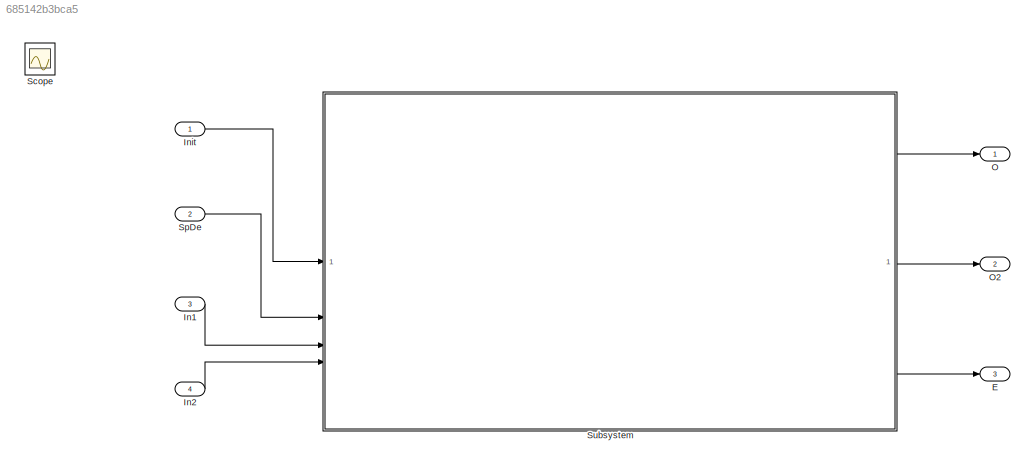
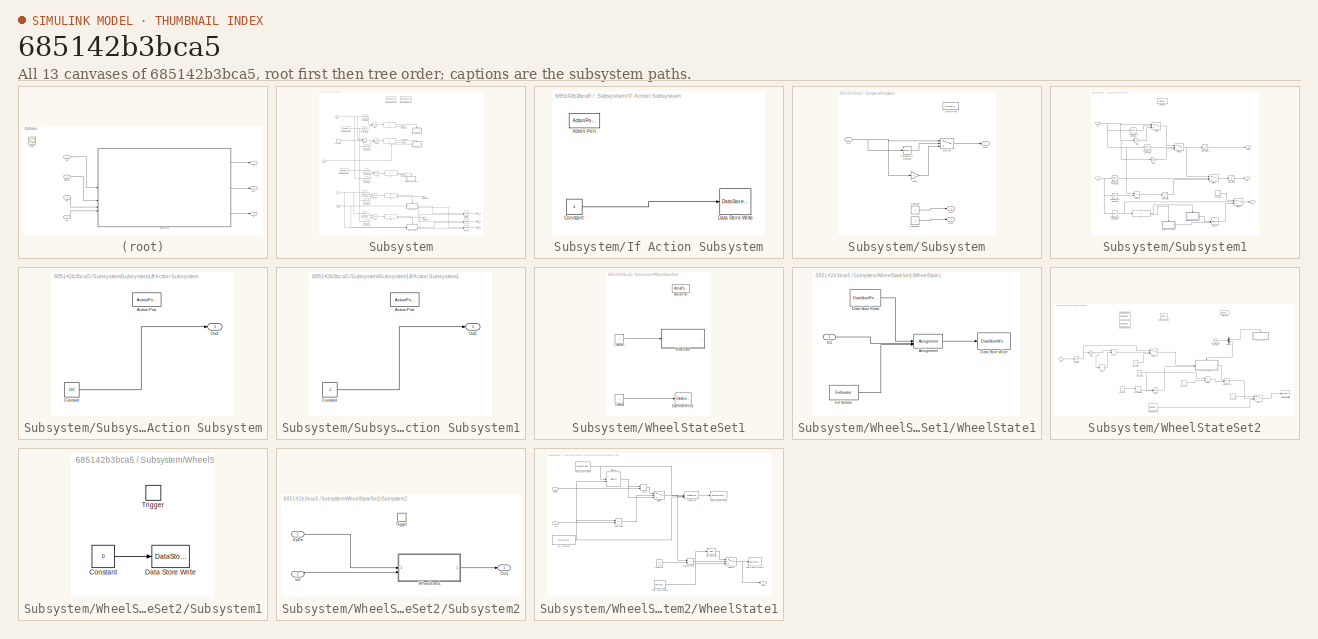
[diagram: thumbnail index - all 13 canvases of the model, root first then tree order]
MODEL slx_685142b3bca5
KIND model
CONFIG AbsTol = auto
CONFIG EnableMultiTasking = off
CONFIG FixedStep = 1
CONFIG MaxStep = auto
CONFIG MinStep = auto
CONFIG RelTol = 1e-3
CONFIG SampleTimeConstraint = Unconstrained
CONFIG SolverName = FixedStepAuto
CONFIG StartTime = 0.0
CONFIG StopTime = 50000000
BLOCK [Outport] E
  Port = 3
BLOCK [Inport] In1
  OutDataTypeStr = int32
  Port = 3
BLOCK [Inport] In2
  OutDataTypeStr = single
  Port = 4
BLOCK [Inport] Init
  OutDataTypeStr = int32
BLOCK [Outport] O
BLOCK [Outport] O2
  Port = 2
BLOCK [Scope] Scope
  Floating = off
  IOType = viewer
  NumInputPorts = 1
  ScopeSpecificationString = Simulink.scopes.TimeScopeBlockCfg('CurrentConfiguration', extmgr.ConfigurationSet(extmgr.Configuration('Core','General UI',true),extmgr.Configuration('Core','Source UI',true),extmgr.Configuration('Sources','WiredSimulink',true),extmgr.Configuration('Visuals','Time Domain',true),extmgr.Configuration('Tools','Plot Navigation',true),extmgr.Configuration('Tools','Measurements',true,'Version','2022b'))...<+49ch>
BLOCK [Inport] SpDe
  OutDataTypeStr = single
  Port = 2
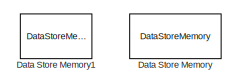
[diagram: Subsystem - part 1/3, top center region]
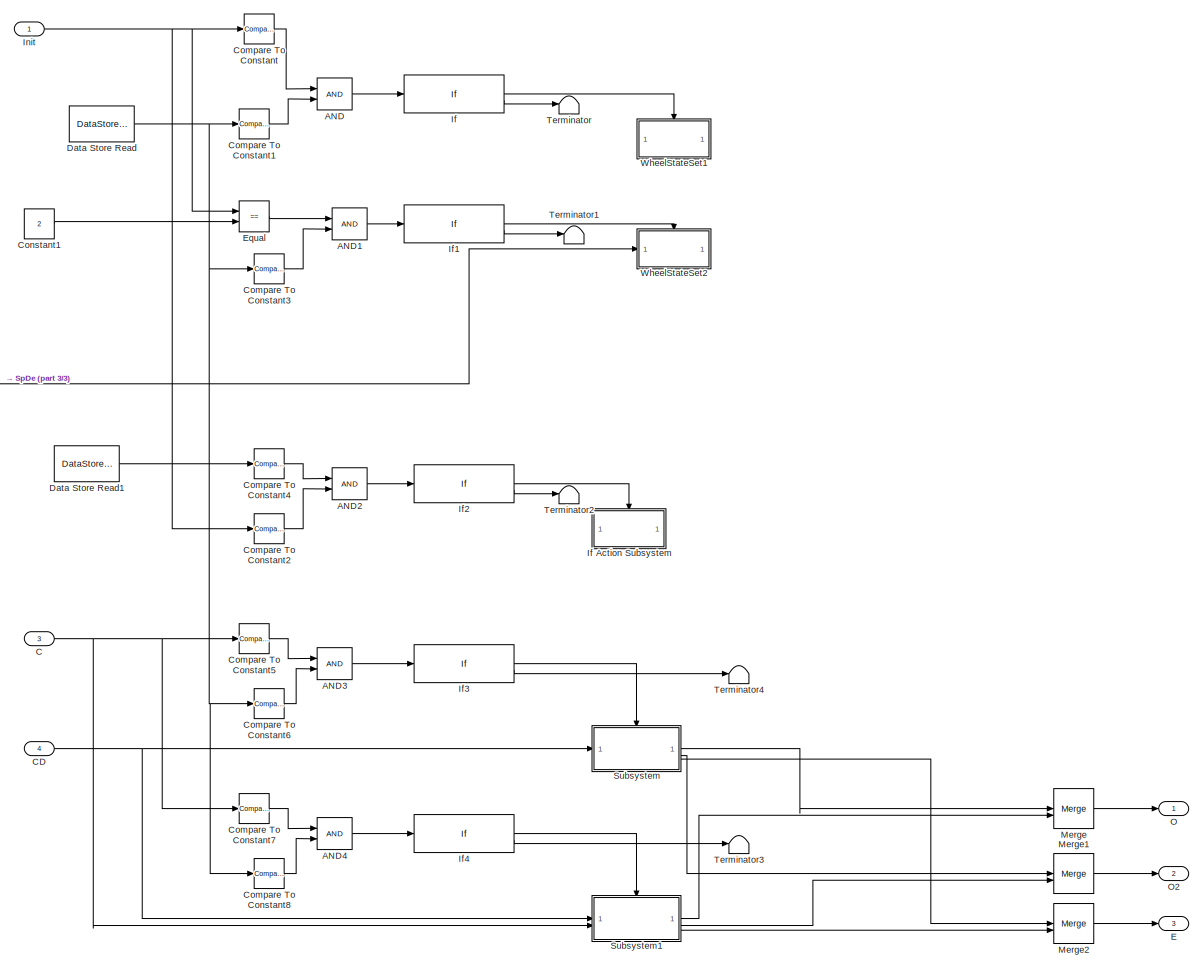
[diagram: Subsystem - part 2/3, most of the canvas]
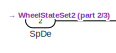
[diagram: Subsystem - part 3/3, middle left region]
BLOCK [SubSystem] Subsystem
BLOCK [Logic] Subsystem/AND
  AllPortsSameDT = off
  IconShape = distinctive
  OutDataTypeStr = boolean
BLOCK [Logic] Subsystem/AND1
  AllPortsSameDT = off
  IconShape = distinctive
  OutDataTypeStr = boolean
BLOCK [Logic] Subsystem/AND2
  AllPortsSameDT = off
  IconShape = distinctive
  OutDataTypeStr = boolean
BLOCK [Logic] Subsystem/AND3
  AllPortsSameDT = off
  IconShape = distinctive
  OutDataTypeStr = boolean
BLOCK [Logic] Subsystem/AND4
  AllPortsSameDT = off
  IconShape = distinctive
  OutDataTypeStr = boolean
BLOCK [Inport] Subsystem/C
  OutDataTypeStr = int32
  Port = 3
BLOCK [Inport] Subsystem/CD
  OutDataTypeStr = single
  Port = 4
BLOCK [Reference] Subsystem/Compare To Constant  REF=simulink/Logic and Bit
Operations/Compare
To Constant
  SourceBlock = simulink/Logic and Bit\nOperations/Compare\nTo Constant
  SourceType = Compare To Constant
BLOCK [Reference] Subsystem/Compare To Constant1  REF=simulink/Logic and Bit
Operations/Compare
To Constant
  SourceBlock = simulink/Logic and Bit\nOperations/Compare\nTo Constant
  SourceType = Compare To Constant
BLOCK [Reference] Subsystem/Compare To Constant2  REF=simulink/Logic and Bit
Operations/Compare
To Constant
  SourceBlock = simulink/Logic and Bit\nOperations/Compare\nTo Constant
  SourceType = Compare To Constant
BLOCK [Reference] Subsystem/Compare To Constant3  REF=simulink/Logic and Bit
Operations/Compare
To Constant
  SourceBlock = simulink/Logic and Bit\nOperations/Compare\nTo Constant
  SourceType = Compare To Constant
BLOCK [Reference] Subsystem/Compare To Constant4  REF=simulink/Logic and Bit
Operations/Compare
To Constant
  SourceBlock = simulink/Logic and Bit\nOperations/Compare\nTo Constant
  SourceType = Compare To Constant
BLOCK [Reference] Subsystem/Compare To Constant5  REF=simulink/Logic and Bit
Operations/Compare
To Constant
  SourceBlock = simulink/Logic and Bit\nOperations/Compare\nTo Constant
  SourceType = Compare To Constant
BLOCK [Reference] Subsystem/Compare To Constant6  REF=simulink/Logic and Bit
Operations/Compare
To Constant
  SourceBlock = simulink/Logic and Bit\nOperations/Compare\nTo Constant
  SourceType = Compare To Constant
BLOCK [Reference] Subsystem/Compare To Constant7  REF=simulink/Logic and Bit
Operations/Compare
To Constant
  SourceBlock = simulink/Logic and Bit\nOperations/Compare\nTo Constant
  SourceType = Compare To Constant
BLOCK [Reference] Subsystem/Compare To Constant8  REF=simulink/Logic and Bit
Operations/Compare
To Constant
  SourceBlock = simulink/Logic and Bit\nOperations/Compare\nTo Constant
  SourceType = Compare To Constant
BLOCK [Constant] Subsystem/Constant1
  OutDataTypeStr = int32
  Value = 2
BLOCK [DataStoreMemory] Subsystem/Data Store Memory
  DataStoreName = WheelState
  Dimensions = Len
  OutDataTypeStr = single
  ShowAdditionalParam = off
  WriteAfterWriteMsg = warning
BLOCK [DataStoreMemory] Subsystem/Data Store Memory1
  DataStoreName = PState
  OutDataTypeStr = int32
  ShowAdditionalParam = off
  WriteAfterWriteMsg = warning
BLOCK [DataStoreRead] Subsystem/Data Store Read
  DataStoreName = PState
  IndexOptions = Index vector (dialog)
  Indices = 1
  OutputSizes = 1
BLOCK [DataStoreRead] Subsystem/Data Store Read1
  DataStoreName = PState
  IndexOptions = Index vector (dialog)
  Indices = 1
  OutputSizes = 1
BLOCK [Outport] Subsystem/E
  Port = 3
BLOCK [RelationalOperator] Subsystem/Equal
  InputSameDT = off
  Operator = ==
  OutDataTypeStr = boolean
  RndMeth = Simplest
BLOCK [If] Subsystem/If
  IfExpression = u1 ~= 0
BLOCK [SubSystem] Subsystem/If Action Subsystem
  TreatAsAtomicUnit = on
BLOCK [ActionPort] Subsystem/If Action Subsystem/Action Port
  ActionPortLabel = if(u1 ~= 0)
BLOCK [Constant] Subsystem/If Action Subsystem/Constant
  OutDataTypeStr = int32
  Value = 4
BLOCK [DataStoreWrite] Subsystem/If Action Subsystem/Data Store Write
  DataStoreName = PState
  IndexOptions = Index vector (dialog)
  Indices = 1
  OutputSizes = 1
BLOCK [If] Subsystem/If1
  IfExpression = u1 ~= 0
BLOCK [If] Subsystem/If2
  IfExpression = u1 ~= 0
BLOCK [If] Subsystem/If3
  IfExpression = u1 ~= 0
BLOCK [If] Subsystem/If4
  IfExpression = u1 ~= 0
BLOCK [Inport] Subsystem/Init
BLOCK [Merge] Subsystem/Merge
BLOCK [Merge] Subsystem/Merge1
BLOCK [Merge] Subsystem/Merge2
BLOCK [Outport] Subsystem/O
BLOCK [Outport] Subsystem/O2
  Port = 2
BLOCK [Inport] Subsystem/SpDe
  OutDataTypeStr = single
  Port = 2
BLOCK [SubSystem] Subsystem/Subsystem
BLOCK [ActionPort] Subsystem/Subsystem/Action Port
  ActionPortLabel = if(u1 ~= 0)
BLOCK [Inport] Subsystem/Subsystem/CD
BLOCK [Reference] Subsystem/Subsystem/Compare To Constant  REF=simulink/Logic and Bit
Operations/Compare
To Constant
  SourceBlock = simulink/Logic and Bit\nOperations/Compare\nTo Constant
  SourceType = Compare To Constant
BLOCK [Constant] Subsystem/Subsystem/Constant
  OutDataTypeStr = single
  Value = -1
BLOCK [Constant] Subsystem/Subsystem/Constant1
  OutDataTypeStr = single
  Value = -1
BLOCK [Gain] Subsystem/Subsystem/Gain
  Gain = -2
  OutDataTypeStr = single
BLOCK [Outport] Subsystem/Subsystem/Out1
BLOCK [Outport] Subsystem/Subsystem/Out2
  Port = 2
BLOCK [Outport] Subsystem/Subsystem/Out3
  Port = 3
BLOCK [Switch] Subsystem/Subsystem/Switch
  Criteria = u2 > Threshold
  InputSameDT = off
  SaturateOnIntegerOverflow = off
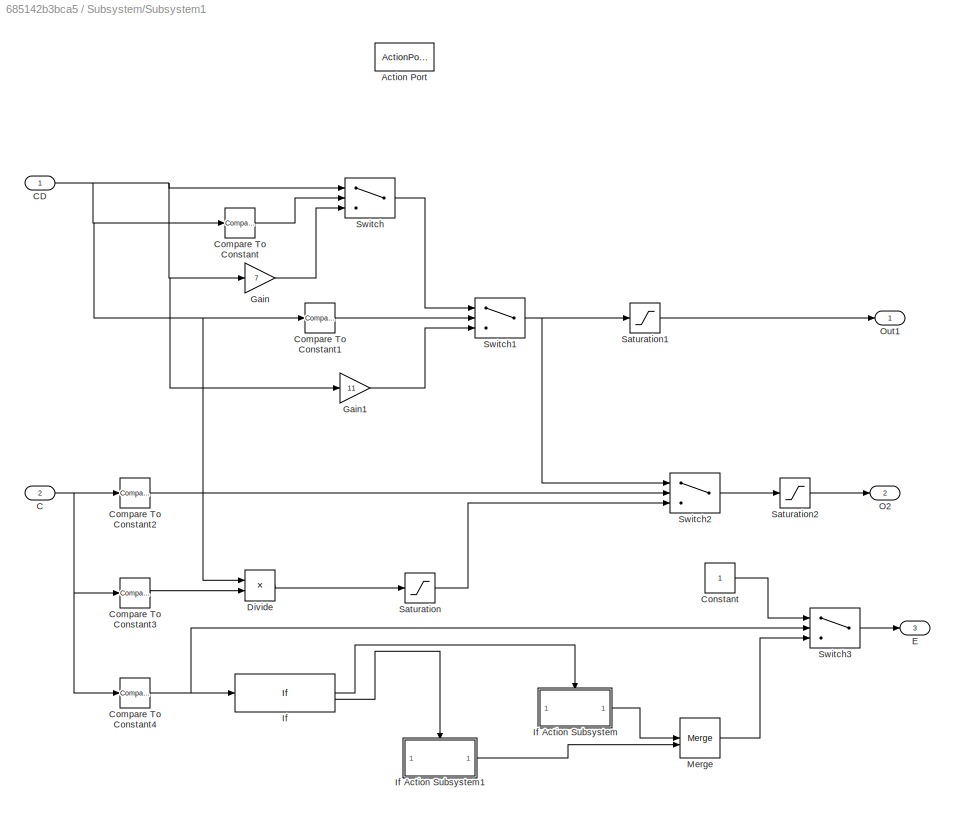
BLOCK [SubSystem] Subsystem/Subsystem1
BLOCK [ActionPort] Subsystem/Subsystem1/Action Port
  ActionPortLabel = if(u1 ~= 0)
BLOCK [Inport] Subsystem/Subsystem1/C
  Port = 2
BLOCK [Inport] Subsystem/Subsystem1/CD
BLOCK [Reference] Subsystem/Subsystem1/Compare To Constant  REF=simulink/Logic and Bit
Operations/Compare
To Constant
  SourceBlock = simulink/Logic and Bit\nOperations/Compare\nTo Constant
  SourceType = Compare To Constant
BLOCK [Reference] Subsystem/Subsystem1/Compare To Constant1  REF=simulink/Logic and Bit
Operations/Compare
To Constant
  SourceBlock = simulink/Logic and Bit\nOperations/Compare\nTo Constant
  SourceType = Compare To Constant
BLOCK [Reference] Subsystem/Subsystem1/Compare To Constant2  REF=simulink/Logic and Bit
Operations/Compare
To Constant
  SourceBlock = simulink/Logic and Bit\nOperations/Compare\nTo Constant
  SourceType = Compare To Constant
BLOCK [Reference] Subsystem/Subsystem1/Compare To Constant3  REF=simulink/Logic and Bit
Operations/Compare
To Constant
  SourceBlock = simulink/Logic and Bit\nOperations/Compare\nTo Constant
  SourceType = Compare To Constant
BLOCK [Reference] Subsystem/Subsystem1/Compare To Constant4  REF=simulink/Logic and Bit
Operations/Compare
To Constant
  SourceBlock = simulink/Logic and Bit\nOperations/Compare\nTo Constant
  SourceType = Compare To Constant
BLOCK [Constant] Subsystem/Subsystem1/Constant
  OutDataTypeStr = single
BLOCK [Product] Subsystem/Subsystem1/Divide
  Inputs = **
  OutDataTypeStr = single
BLOCK [Outport] Subsystem/Subsystem1/E
  Port = 3
BLOCK [Gain] Subsystem/Subsystem1/Gain
  Gain = 7
  OutDataTypeStr = single
BLOCK [Gain] Subsystem/Subsystem1/Gain1
  Gain = 11
  OutDataTypeStr = single
BLOCK [If] Subsystem/Subsystem1/If
  IfExpression = u1 ~= 0
BLOCK [SubSystem] Subsystem/Subsystem1/If Action Subsystem
  TreatAsAtomicUnit = on
BLOCK [ActionPort] Subsystem/Subsystem1/If Action Subsystem/Action Port
  ActionPortLabel = if(u1 ~= 0)
BLOCK [Constant] Subsystem/Subsystem1/If Action Subsystem/Constant
  OutDataTypeStr = single
  Value = 101
BLOCK [Outport] Subsystem/Subsystem1/If Action Subsystem/Out1
BLOCK [SubSystem] Subsystem/Subsystem1/If Action Subsystem1
  TreatAsAtomicUnit = on
BLOCK [ActionPort] Subsystem/Subsystem1/If Action Subsystem1/Action Port
  ActionPortLabel = else
BLOCK [Constant] Subsystem/Subsystem1/If Action Subsystem1/Constant
  OutDataTypeStr = single
  Value = -1
BLOCK [Outport] Subsystem/Subsystem1/If Action Subsystem1/Out1
BLOCK [Merge] Subsystem/Subsystem1/Merge
BLOCK [Outport] Subsystem/Subsystem1/O2
  Port = 2
BLOCK [Outport] Subsystem/Subsystem1/Out1
BLOCK [Saturate] Subsystem/Subsystem1/Saturation
  LowerLimit = 0
  UpperLimit = 97
BLOCK [Saturate] Subsystem/Subsystem1/Saturation1
  LowerLimit = 0
  UpperLimit = 97
BLOCK [Saturate] Subsystem/Subsystem1/Saturation2
  LowerLimit = 0
  UpperLimit = 100
BLOCK [Switch] Subsystem/Subsystem1/Switch
  Criteria = u2 > Threshold
  InputSameDT = off
  SaturateOnIntegerOverflow = off
BLOCK [Switch] Subsystem/Subsystem1/Switch1
  Criteria = u2 > Threshold
  InputSameDT = off
  SaturateOnIntegerOverflow = off
BLOCK [Switch] Subsystem/Subsystem1/Switch2
  Criteria = u2 > Threshold
  InputSameDT = off
  SaturateOnIntegerOverflow = off
BLOCK [Switch] Subsystem/Subsystem1/Switch3
  Criteria = u2 > Threshold
  InputSameDT = off
  SaturateOnIntegerOverflow = off
BLOCK [Terminator] Subsystem/Terminator
BLOCK [Terminator] Subsystem/Terminator1
BLOCK [Terminator] Subsystem/Terminator2
BLOCK [Terminator] Subsystem/Terminator3
BLOCK [Terminator] Subsystem/Terminator4
BLOCK [SubSystem] Subsystem/WheelStateSet1
  TreatAsAtomicUnit = on
BLOCK [ActionPort] Subsystem/WheelStateSet1/Action Port
  ActionPortLabel = if(u1 ~= 0)
BLOCK [Constant] Subsystem/WheelStateSet1/Constant
  OutDataTypeStr = int32
BLOCK [Constant] Subsystem/WheelStateSet1/Constant1
  OutDataTypeStr = single
BLOCK [DataStoreWrite] Subsystem/WheelStateSet1/Data Store Write1
  DataStoreName = PState
  IndexOptions = Index vector (dialog)
  Indices = 1
  OutputSizes = 1
BLOCK [SubSystem] Subsystem/WheelStateSet1/WheelState1
  TreatAsAtomicUnit = on
BLOCK [Assignment] Subsystem/WheelStateSet1/WheelState1/Assignment
  DiagnosticForDimensions = Warning
  IndexMode = Zero-based
  IndexOptions = Index vector (port)
  Indices = 1
  OutputSizes = 1
BLOCK [DataStoreRead] Subsystem/WheelStateSet1/WheelState1/Data Store Read
  DataStoreName = WheelState
  IndexOptions = Index vector (dialog)
  Indices = 1
  OutputSizes = 1
BLOCK [DataStoreWrite] Subsystem/WheelStateSet1/WheelState1/Data Store Write
  DataStoreName = WheelState
  IndexOptions = Index vector (dialog)
  Indices = 1
  OutputSizes = 1
BLOCK [ForIterator] Subsystem/WheelStateSet1/WheelState1/For Iterator
  IndexMode = Zero-based
  IterationLimit = Len
BLOCK [Inport] Subsystem/WheelStateSet1/WheelState1/In1
BLOCK [SubSystem] Subsystem/WheelStateSet2
  TreatAsAtomicUnit = on
BLOCK [DiscreteIntegrator] Subsystem/WheelStateSet2/Accumulator
  ICPrevOutput = DiscIntNeverNeededParam
  ICPrevScaledInput = DiscIntNeverNeededParam
  InitialConditionSetting = Auto
  IntegratorMethod = Accumulation: Forward Euler
  SampleTime = -1
BLOCK [ActionPort] Subsystem/WheelStateSet2/Action Port
  ActionPortLabel = if(u1 ~= 0)
BLOCK [Constant] Subsystem/WheelStateSet2/Constant
  OutDataTypeStr = int32
BLOCK [Constant] Subsystem/WheelStateSet2/Constant1
  OutDataTypeStr = single
  Value = 0
BLOCK [Constant] Subsystem/WheelStateSet2/Constant2
  OutDataTypeStr = int32
  Value = 2
BLOCK [Constant] Subsystem/WheelStateSet2/Constant3
  OutDataTypeStr = int32
  Value = Len
BLOCK [Constant] Subsystem/WheelStateSet2/Constant4
  OutDataTypeStr = int32
  Value = 2
BLOCK [DataStoreMemory] Subsystem/WheelStateSet2/Data Store Memory
  DataStoreName = CountSp
  OutDataTypeStr = int32
  ShowAdditionalParam = off
  WriteAfterWriteMsg = warning
BLOCK [DataStoreMemory] Subsystem/WheelStateSet2/Data Store Memory2
  DataStoreName = SpDeSt
  Dimensions = Len
  OutDataTypeStr = int32
  ShowAdditionalParam = off
  WriteAfterWriteMsg = warning
BLOCK [DataStoreMemory] Subsystem/WheelStateSet2/Data Store Memory5
  DataStoreName = Index
  OutDataTypeStr = int32
  ShowAdditionalParam = off
  WriteAfterWriteMsg = warning
BLOCK [DataStoreRead] Subsystem/WheelStateSet2/Data Store Read
  DataStoreName = PState
  IndexOptions = Index vector (dialog)
  Indices = 1
  OutputSizes = 1
BLOCK [DataStoreWrite] Subsystem/WheelStateSet2/Data Store Write1
  DataStoreName = PState
  IndexOptions = Index vector (dialog)
  Indices = 1
  OutputSizes = 1
BLOCK [Delay] Subsystem/WheelStateSet2/Delay
  DelayLength = 1
  InputPortMap = u0
BLOCK [Demux] Subsystem/WheelStateSet2/Demux
  Outputs = 2
BLOCK [Product] Subsystem/WheelStateSet2/Divide
  Inputs = */
BLOCK [RelationalOperator] Subsystem/WheelStateSet2/Equal
  InputSameDT = off
  Operator = ~=
  OutDataTypeStr = boolean
  RndMeth = Simplest
BLOCK [Reference] Subsystem/WheelStateSet2/Function-Call Generator  REF=simulink/Ports &
Subsystems/Function-Call
Generator
  SourceBlock = simulink/Ports &\nSubsystems/Function-Call\nGenerator
  SourceType = Function-Call Generator
BLOCK [Gain] Subsystem/WheelStateSet2/Gain
  Gain = 100
  OutDataTypeStr = int32
BLOCK [RelationalOperator] Subsystem/WheelStateSet2/GreaterThan
  InputSameDT = off
  OutDataTypeStr = boolean
  RndMeth = Simplest
BLOCK [Math] Subsystem/WheelStateSet2/Mod
  Operator = mod
BLOCK [Saturate] Subsystem/WheelStateSet2/Saturation
  LowerLimit = 0.1
BLOCK [Inport] Subsystem/WheelStateSet2/SpDe
BLOCK [SubSystem] Subsystem/WheelStateSet2/Subsystem1
BLOCK [Constant] Subsystem/WheelStateSet2/Subsystem1/Constant
  OutDataTypeStr = int32
  Value = 0
BLOCK [DataStoreWrite] Subsystem/WheelStateSet2/Subsystem1/Data Store Write
  DataStoreName = CountSp
  IndexOptions = Index vector (dialog)
  Indices = 1
  OutputSizes = 1
BLOCK [TriggerPort] Subsystem/WheelStateSet2/Subsystem1/Trigger
  PortDimensions = 1
  StatesWhenEnabling = held
  TriggerType = function-call
  VariantControl = (inherit)
BLOCK [SubSystem] Subsystem/WheelStateSet2/Subsystem2
BLOCK [Inport] Subsystem/WheelStateSet2/Subsystem2/In2
  Port = 2
BLOCK [Outport] Subsystem/WheelStateSet2/Subsystem2/Out1
BLOCK [Inport] Subsystem/WheelStateSet2/Subsystem2/SpDe
BLOCK [TriggerPort] Subsystem/WheelStateSet2/Subsystem2/Trigger
  PortDimensions = 1
  StatesWhenEnabling = held
  TriggerType = function-call
  VariantControl = (inherit)
BLOCK [SubSystem] Subsystem/WheelStateSet2/Subsystem2/WheelState1
  TreatAsAtomicUnit = on
BLOCK [Sum] Subsystem/WheelStateSet2/Subsystem2/WheelState1/Add
  IconShape = rectangular
BLOCK [Bias] Subsystem/WheelStateSet2/Subsystem2/WheelState1/Add Constant
  Bias = 1
  SaturateOnIntegerOverflow = off
BLOCK [Assignment] Subsystem/WheelStateSet2/Subsystem2/WheelState1/Assignment
  DiagnosticForDimensions = Warning
  IndexMode = Zero-based
  IndexOptions = Index vector (port)
  Indices = 1
  OutputSizes = 1
BLOCK [Constant] Subsystem/WheelStateSet2/Subsystem2/WheelState1/Constant
  OutDataTypeStr = single
  Value = 1.2
BLOCK [DataStoreRead] Subsystem/WheelStateSet2/Subsystem2/WheelState1/Data Store Read
  DataStoreName = WheelState
  IndexOptions = Index vector (dialog)
  Indices = 1
  OutputSizes = 1
BLOCK [DataStoreRead] Subsystem/WheelStateSet2/Subsystem2/WheelState1/Data Store Read1
  DataStoreName = CountSp
  IndexOptions = Index vector (dialog)
  Indices = 1
  OutputSizes = 1
BLOCK [DataStoreWrite] Subsystem/WheelStateSet2/Subsystem2/WheelState1/Data Store Write
  DataStoreName = WheelState
  IndexOptions = Index vector (dialog)
  Indices = 1
  OutputSizes = 1
BLOCK [DataStoreWrite] Subsystem/WheelStateSet2/Subsystem2/WheelState1/Data Store Write1
  DataStoreName = CountSp
  IndexOptions = Index vector (dialog)
  Indices = 1
  OutputSizes = 1
BLOCK [ForIterator] Subsystem/WheelStateSet2/Subsystem2/WheelState1/For Iterator
  IndexMode = Zero-based
  IterationLimit = Len
BLOCK [RelationalOperator] Subsystem/WheelStateSet2/Subsystem2/WheelState1/GreaterThan
  InputSameDT = off
  Operator = >
  OutDataTypeStr = boolean
  RndMeth = Simplest
BLOCK [Inport] Subsystem/WheelStateSet2/Subsystem2/WheelState1/In1
  Port = 2
BLOCK [RelationalOperator] Subsystem/WheelStateSet2/Subsystem2/WheelState1/Less Than
  InputSameDT = off
  Operator = ==
  OutDataTypeStr = boolean
  RndMeth = Simplest
BLOCK [Outport] Subsystem/WheelStateSet2/Subsystem2/WheelState1/Out1
BLOCK [Selector] Subsystem/WheelStateSet2/Subsystem2/WheelState1/Selector
  IndexMode = Zero-based
  IndexOptions = Index vector (port)
  Indices = [1 3]
  InputPortWidth = Len
  OutputSizes = 1
BLOCK [Inport] Subsystem/WheelStateSet2/Subsystem2/WheelState1/SpDe
BLOCK [Switch] Subsystem/WheelStateSet2/Subsystem2/WheelState1/Switch
  Criteria = u2 > Threshold
  InputSameDT = off
  SaturateOnIntegerOverflow = off
BLOCK [Switch] Subsystem/WheelStateSet2/Subsystem2/WheelState1/Switch1
  Criteria = u2 > Threshold
  InputSameDT = off
  SaturateOnIntegerOverflow = off
BLOCK [Switch] Subsystem/WheelStateSet2/Switch
  Criteria = u2 ~= 0
  InputSameDT = off
  SaturateOnIntegerOverflow = off
BLOCK [Switch] Subsystem/WheelStateSet2/Switch1
  Criteria = u2 > Threshold
  InputSameDT = off
  SaturateOnIntegerOverflow = off
LINE In1:1 -> Subsystem:3
LINE In2:1 -> Subsystem:4
LINE Init:1 -> Subsystem:1
LINE SpDe:1 -> Subsystem:2
LINE Subsystem/AND1:1 -> Subsystem/If1:1
LINE Subsystem/AND2:1 -> Subsystem/If2:1
LINE Subsystem/AND3:1 -> Subsystem/If3:1
LINE Subsystem/AND4:1 -> Subsystem/If4:1
LINE Subsystem/AND:1 -> Subsystem/If:1
NET Subsystem/C:1 -> Subsystem/Compare To Constant5:1, Subsystem/Compare To Constant7:1, Subsystem/Subsystem1:2
NET Subsystem/CD:1 -> Subsystem/Subsystem1:1, Subsystem/Subsystem:1
LINE Subsystem/Compare To Constant1:1 -> Subsystem/AND:2
LINE Subsystem/Compare To Constant2:1 -> Subsystem/AND2:2
LINE Subsystem/Compare To Constant3:1 -> Subsystem/AND1:2
LINE Subsystem/Compare To Constant4:1 -> Subsystem/AND2:1
LINE Subsystem/Compare To Constant5:1 -> Subsystem/AND3:1
LINE Subsystem/Compare To Constant6:1 -> Subsystem/AND3:2
LINE Subsystem/Compare To Constant7:1 -> Subsystem/AND4:1
LINE Subsystem/Compare To Constant8:1 -> Subsystem/AND4:2
LINE Subsystem/Compare To Constant:1 -> Subsystem/AND:1
LINE Subsystem/Constant1:1 -> Subsystem/Equal:2
LINE Subsystem/Data Store Read1:1 -> Subsystem/Compare To Constant4:1
NET Subsystem/Data Store Read:1 -> Subsystem/Compare To Constant1:1, Subsystem/Compare To Constant3:1, Subsystem/Compare To Constant6:1, Subsystem/Compare To Constant8:1
LINE Subsystem/Equal:1 -> Subsystem/AND1:1
LINE Subsystem/If Action Subsystem/Constant:1 -> Subsystem/If Action Subsystem/Data Store Write:1
LINE Subsystem/If1:1 -> Subsystem/WheelStateSet2:ifaction
LINE Subsystem/If1:2 -> Subsystem/Terminator1:1
LINE Subsystem/If2:1 -> Subsystem/If Action Subsystem:ifaction
LINE Subsystem/If2:2 -> Subsystem/Terminator2:1
LINE Subsystem/If3:1 -> Subsystem/Subsystem:ifaction
LINE Subsystem/If3:2 -> Subsystem/Terminator4:1
LINE Subsystem/If4:1 -> Subsystem/Subsystem1:ifaction
LINE Subsystem/If4:2 -> Subsystem/Terminator3:1
LINE Subsystem/If:1 -> Subsystem/WheelStateSet1:ifaction
LINE Subsystem/If:2 -> Subsystem/Terminator:1
NET Subsystem/Init:1 -> Subsystem/Compare To Constant2:1, Subsystem/Compare To Constant:1, Subsystem/Equal:1
LINE Subsystem/Merge1:1 -> Subsystem/O2:1
LINE Subsystem/Merge2:1 -> Subsystem/E:1
LINE Subsystem/Merge:1 -> Subsystem/O:1
LINE Subsystem/SpDe:1 -> Subsystem/WheelStateSet2:1
NET Subsystem/Subsystem/CD:1 -> Subsystem/Subsystem/Compare To Constant:1, Subsystem/Subsystem/Gain:1, Subsystem/Subsystem/Switch:1
LINE Subsystem/Subsystem/Compare To Constant:1 -> Subsystem/Subsystem/Switch:2
LINE Subsystem/Subsystem/Constant1:1 -> Subsystem/Subsystem/Out3:1
LINE Subsystem/Subsystem/Constant:1 -> Subsystem/Subsystem/Out2:1
LINE Subsystem/Subsystem/Gain:1 -> Subsystem/Subsystem/Switch:3
LINE Subsystem/Subsystem/Switch:1 -> Subsystem/Subsystem/Out1:1
NET Subsystem/Subsystem1/C:1 -> Subsystem/Subsystem1/Compare To Constant2:1, Subsystem/Subsystem1/Compare To Constant3:1, Subsystem/Subsystem1/Compare To Constant4:1
NET Subsystem/Subsystem1/CD:1 -> Subsystem/Subsystem1/Compare To Constant1:1, Subsystem/Subsystem1/Compare To Constant:1, Subsystem/Subsystem1/Divide:1, Subsystem/Subsystem1/Gain1:1, Subsystem/Subsystem1/Gain:1, Subsystem/Subsystem1/Switch:1
LINE Subsystem/Subsystem1/Compare To Constant1:1 -> Subsystem/Subsystem1/Switch1:2
LINE Subsystem/Subsystem1/Compare To Constant2:1 -> Subsystem/Subsystem1/Switch2:2
LINE Subsystem/Subsystem1/Compare To Constant3:1 -> Subsystem/Subsystem1/Divide:2
NET Subsystem/Subsystem1/Compare To Constant4:1 -> Subsystem/Subsystem1/If:1, Subsystem/Subsystem1/Switch3:2
LINE Subsystem/Subsystem1/Compare To Constant:1 -> Subsystem/Subsystem1/Switch:2
LINE Subsystem/Subsystem1/Constant:1 -> Subsystem/Subsystem1/Switch3:1
LINE Subsystem/Subsystem1/Divide:1 -> Subsystem/Subsystem1/Saturation:1
LINE Subsystem/Subsystem1/Gain1:1 -> Subsystem/Subsystem1/Switch1:3
LINE Subsystem/Subsystem1/Gain:1 -> Subsystem/Subsystem1/Switch:3
LINE Subsystem/Subsystem1/If Action Subsystem/Constant:1 -> Subsystem/Subsystem1/If Action Subsystem/Out1:1
LINE Subsystem/Subsystem1/If Action Subsystem1/Constant:1 -> Subsystem/Subsystem1/If Action Subsystem1/Out1:1
LINE Subsystem/Subsystem1/If Action Subsystem1:1 -> Subsystem/Subsystem1/Merge:2
LINE Subsystem/Subsystem1/If Action Subsystem:1 -> Subsystem/Subsystem1/Merge:1
LINE Subsystem/Subsystem1/If:1 -> Subsystem/Subsystem1/If Action Subsystem:ifaction
LINE Subsystem/Subsystem1/If:2 -> Subsystem/Subsystem1/If Action Subsystem1:ifaction
LINE Subsystem/Subsystem1/Merge:1 -> Subsystem/Subsystem1/Switch3:3
LINE Subsystem/Subsystem1/Saturation1:1 -> Subsystem/Subsystem1/Out1:1
LINE Subsystem/Subsystem1/Saturation2:1 -> Subsystem/Subsystem1/O2:1
LINE Subsystem/Subsystem1/Saturation:1 -> Subsystem/Subsystem1/Switch2:3
NET Subsystem/Subsystem1/Switch1:1 -> Subsystem/Subsystem1/Saturation1:1, Subsystem/Subsystem1/Switch2:1
LINE Subsystem/Subsystem1/Switch2:1 -> Subsystem/Subsystem1/Saturation2:1
LINE Subsystem/Subsystem1/Switch3:1 -> Subsystem/Subsystem1/E:1
LINE Subsystem/Subsystem1/Switch:1 -> Subsystem/Subsystem1/Switch1:1
LINE Subsystem/Subsystem1:1 -> Subsystem/Merge:2
LINE Subsystem/Subsystem1:2 -> Subsystem/Merge1:2
LINE Subsystem/Subsystem1:3 -> Subsystem/Merge2:2
LINE Subsystem/Subsystem:1 -> Subsystem/Merge:1
LINE Subsystem/Subsystem:2 -> Subsystem/Merge1:1
LINE Subsystem/Subsystem:3 -> Subsystem/Merge2:1
LINE Subsystem/WheelStateSet1/Constant1:1 -> Subsystem/WheelStateSet1/WheelState1:1
LINE Subsystem/WheelStateSet1/Constant:1 -> Subsystem/WheelStateSet1/Data Store Write1:1
LINE Subsystem/WheelStateSet1/WheelState1/Assignment:1 -> Subsystem/WheelStateSet1/WheelState1/Data Store Write:1
LINE Subsystem/WheelStateSet1/WheelState1/Data Store Read:1 -> Subsystem/WheelStateSet1/WheelState1/Assignment:1
LINE Subsystem/WheelStateSet1/WheelState1/For Iterator:1 -> Subsystem/WheelStateSet1/WheelState1/Assignment:3
LINE Subsystem/WheelStateSet1/WheelState1/In1:1 -> Subsystem/WheelStateSet1/WheelState1/Assignment:2
LINE Subsystem/WheelStateSet2/Accumulator:1 -> Subsystem/WheelStateSet2/Mod:1
LINE Subsystem/WheelStateSet2/Constant1:1 -> Subsystem/WheelStateSet2/Switch1:3
LINE Subsystem/WheelStateSet2/Constant2:1 -> Subsystem/WheelStateSet2/Switch:1
NET Subsystem/WheelStateSet2/Constant3:1 -> Subsystem/WheelStateSet2/Divide:1, Subsystem/WheelStateSet2/Mod:2
LINE Subsystem/WheelStateSet2/Constant4:1 -> Subsystem/WheelStateSet2/Divide:2
LINE Subsystem/WheelStateSet2/Constant:1 -> Subsystem/WheelStateSet2/Accumulator:1
LINE Subsystem/WheelStateSet2/Data Store Read:1 -> Subsystem/WheelStateSet2/Switch:3
LINE Subsystem/WheelStateSet2/Delay:1 -> Subsystem/WheelStateSet2/Equal:2
LINE Subsystem/WheelStateSet2/Demux:1 -> Subsystem/WheelStateSet2/Subsystem1:trigger
LINE Subsystem/WheelStateSet2/Demux:2 -> Subsystem/WheelStateSet2/Subsystem2:trigger
LINE Subsystem/WheelStateSet2/Divide:1 -> Subsystem/WheelStateSet2/GreaterThan:2
LINE Subsystem/WheelStateSet2/Equal:1 -> Subsystem/WheelStateSet2/Switch1:2
LINE Subsystem/WheelStateSet2/Function-Call Generator:1 -> Subsystem/WheelStateSet2/Demux:1
NET Subsystem/WheelStateSet2/Gain:1 -> Subsystem/WheelStateSet2/Delay:1, Subsystem/WheelStateSet2/Equal:1
LINE Subsystem/WheelStateSet2/GreaterThan:1 -> Subsystem/WheelStateSet2/Switch:2
LINE Subsystem/WheelStateSet2/Mod:1 -> Subsystem/WheelStateSet2/Subsystem2:2
NET Subsystem/WheelStateSet2/Saturation:1 -> Subsystem/WheelStateSet2/Gain:1, Subsystem/WheelStateSet2/Switch1:1
LINE Subsystem/WheelStateSet2/SpDe:1 -> Subsystem/WheelStateSet2/Saturation:1
LINE Subsystem/WheelStateSet2/Subsystem1/Constant:1 -> Subsystem/WheelStateSet2/Subsystem1/Data Store Write:1
LINE Subsystem/WheelStateSet2/Subsystem2/In2:1 -> Subsystem/WheelStateSet2/Subsystem2/WheelState1:2
LINE Subsystem/WheelStateSet2/Subsystem2/SpDe:1 -> Subsystem/WheelStateSet2/Subsystem2/WheelState1:1
LINE Subsystem/WheelStateSet2/Subsystem2/WheelState1/Add Constant:1 -> Subsystem/WheelStateSet2/Subsystem2/WheelState1/Switch1:1
LINE Subsystem/WheelStateSet2/Subsystem2/WheelState1/Add:1 -> Subsystem/WheelStateSet2/Subsystem2/WheelState1/Switch:1
LINE Subsystem/WheelStateSet2/Subsystem2/WheelState1/Assignment:1 -> Subsystem/WheelStateSet2/Subsystem2/WheelState1/Data Store Write:1
LINE Subsystem/WheelStateSet2/Subsystem2/WheelState1/Constant:1 -> Subsystem/WheelStateSet2/Subsystem2/WheelState1/GreaterThan:2
NET Subsystem/WheelStateSet2/Subsystem2/WheelState1/Data Store Read1:1 -> Subsystem/WheelStateSet2/Subsystem2/WheelState1/Add Constant:1, Subsystem/WheelStateSet2/Subsystem2/WheelState1/Switch1:3
NET Subsystem/WheelStateSet2/Subsystem2/WheelState1/Data Store Read:1 -> Subsystem/WheelStateSet2/Subsystem2/WheelState1/Assignment:1, Subsystem/WheelStateSet2/Subsystem2/WheelState1/Selector:1
NET Subsystem/WheelStateSet2/Subsystem2/WheelState1/For Iterator:1 -> Subsystem/WheelStateSet2/Subsystem2/WheelState1/Assignment:3, Subsystem/WheelStateSet2/Subsystem2/WheelState1/Less Than:1, Subsystem/WheelStateSet2/Subsystem2/WheelState1/Selector:2
LINE Subsystem/WheelStateSet2/Subsystem2/WheelState1/GreaterThan:1 -> Subsystem/WheelStateSet2/Subsystem2/WheelState1/Switch1:2
LINE Subsystem/WheelStateSet2/Subsystem2/WheelState1/In1:1 -> Subsystem/WheelStateSet2/Subsystem2/WheelState1/Less Than:2
LINE Subsystem/WheelStateSet2/Subsystem2/WheelState1/Less Than:1 -> Subsystem/WheelStateSet2/Subsystem2/WheelState1/Switch:2
NET Subsystem/WheelStateSet2/Subsystem2/WheelState1/Selector:1 -> Subsystem/WheelStateSet2/Subsystem2/WheelState1/Add:1, Subsystem/WheelStateSet2/Subsystem2/WheelState1/Switch:3
LINE Subsystem/WheelStateSet2/Subsystem2/WheelState1/SpDe:1 -> Subsystem/WheelStateSet2/Subsystem2/WheelState1/Add:2
NET Subsystem/WheelStateSet2/Subsystem2/WheelState1/Switch1:1 -> Subsystem/WheelStateSet2/Subsystem2/WheelState1/Data Store Write1:1, Subsystem/WheelStateSet2/Subsystem2/WheelState1/Out1:1
NET Subsystem/WheelStateSet2/Subsystem2/WheelState1/Switch:1 -> Subsystem/WheelStateSet2/Subsystem2/WheelState1/Assignment:2, Subsystem/WheelStateSet2/Subsystem2/WheelState1/GreaterThan:1
LINE Subsystem/WheelStateSet2/Subsystem2/WheelState1:1 -> Subsystem/WheelStateSet2/Subsystem2/Out1:1
LINE Subsystem/WheelStateSet2/Subsystem2:1 -> Subsystem/WheelStateSet2/GreaterThan:1
LINE Subsystem/WheelStateSet2/Switch1:1 -> Subsystem/WheelStateSet2/Subsystem2:1
LINE Subsystem/WheelStateSet2/Switch:1 -> Subsystem/WheelStateSet2/Data Store Write1:1
LINE Subsystem:1 -> O:1
LINE Subsystem:2 -> O2:1
LINE Subsystem:3 -> E:1
note: NET lines group one-source signal fan-out (src -> all destinations, sorted); 1:1 wires keep LINE
